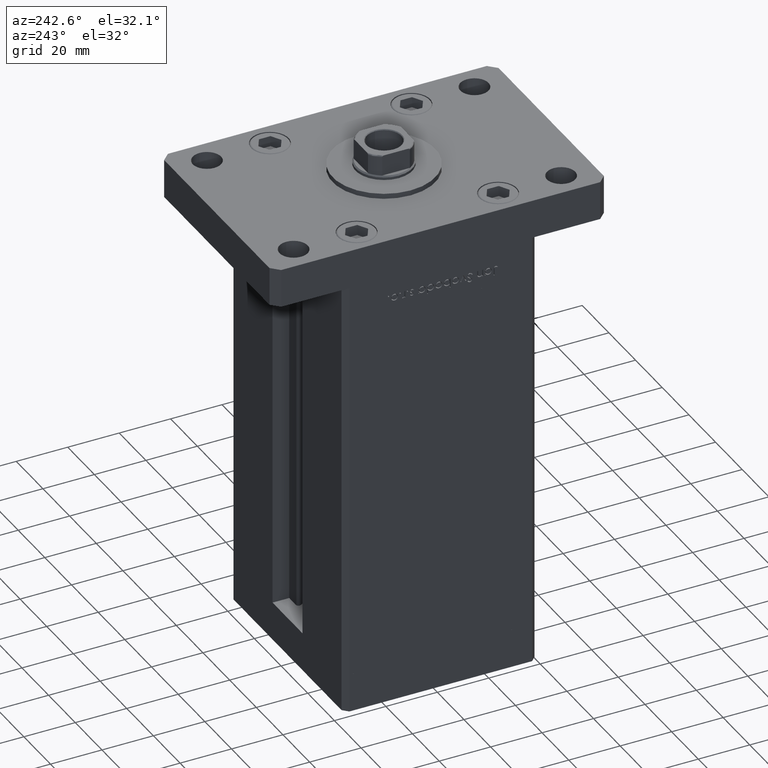
[diagram: clean part render]
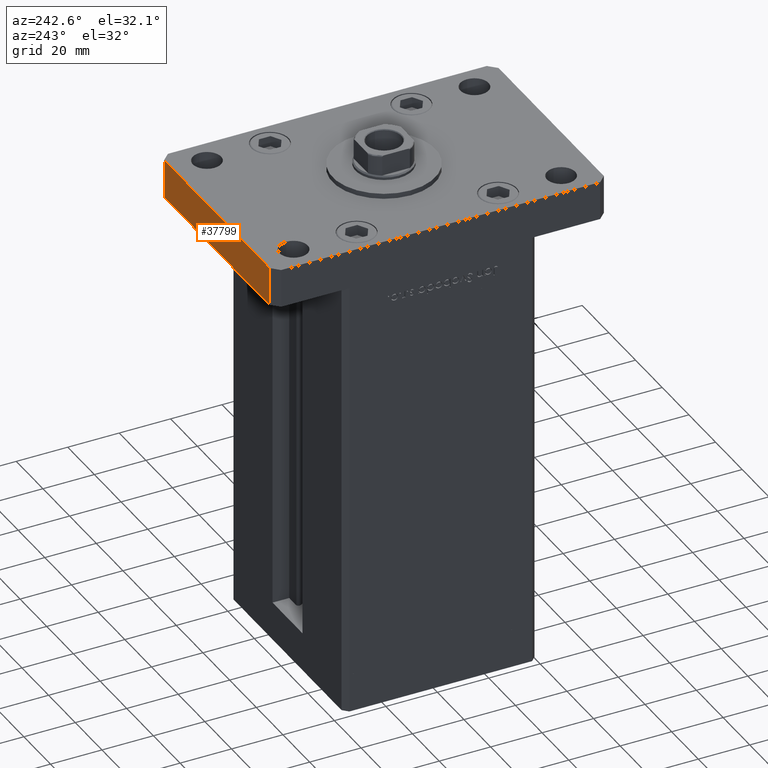
[diagram: same view with one face highlighted and labeled with its STEP entity id]
A machine part, auxiliary view. The second image highlights one B-rep face of the part: STEP entity #37799.
In plain terms, the highlighted planar face has unit normal (0, -1, 0).
Its self-contained STEP definition (entity closure, byte-faithful):
#71 = CARTESIAN_POINT ( 'NONE',  ( 39.50000000000002842, 65.00000000000002842, 15.00000000000000000 ) ) ;
#1464 = ORIENTED_EDGE ( 'NONE', *, *, #5199, .F. ) ;
#5070 = DIRECTION ( 'NONE',  ( -0.000000000000000000, -0.000000000000000000, -1.000000000000000000 ) ) ;
#5199 = EDGE_CURVE ( 'NONE', #7117, #37916, #51415, .T. ) ;
#6117 = EDGE_CURVE ( 'NONE', #34695, #7117, #26219, .T. ) ;
#7117 = VERTEX_POINT ( 'NONE', #8553 ) ;
#7180 = DIRECTION ( 'NONE',  ( 3.513364001978341005E-16, -1.000000000000000000, 0.000000000000000000 ) ) ;
#7453 = CARTESIAN_POINT ( 'NONE',  ( 39.50000000000002842, 65.00000000000002842, 15.00000000000000000 ) ) ;
#8553 = CARTESIAN_POINT ( 'NONE',  ( -39.50000000000003553, 65.00000000000000000, 15.00000000000000000 ) ) ;
#10523 = CARTESIAN_POINT ( 'NONE',  ( 39.50000000000002842, 65.00000000000002842, 0.000000000000000000 ) ) ;
#13001 = ORIENTED_EDGE ( 'NONE', *, *, #6117, .F. ) ;
#15807 = DIRECTION ( 'NONE',  ( -1.000000000000000000, -3.513364001978340512E-16, 0.000000000000000000 ) ) ;
#20008 = AXIS2_PLACEMENT_3D ( 'NONE', #7453, #7180, #40521 ) ;
#20589 = ORIENTED_EDGE ( 'NONE', *, *, #52220, .T. ) ;
#24158 = LINE ( 'NONE', #32801, #31567 ) ;
#26219 = LINE ( 'NONE', #26763, #28793 ) ;
#26763 = CARTESIAN_POINT ( 'NONE',  ( 39.50000000000002842, 65.00000000000002842, 15.00000000000000000 ) ) ;
#28590 = CARTESIAN_POINT ( 'NONE',  ( -39.50000000000003553, 65.00000000000000000, 0.000000000000000000 ) ) ;
#28793 = VECTOR ( 'NONE', #47087, 1000.000000000000000 ) ;
#31129 = EDGE_LOOP ( 'NONE', ( #20589, #1464, #13001, #48583 ) ) ;
#31567 = VECTOR ( 'NONE', #40934, 1000.000000000000000 ) ;
#32801 = CARTESIAN_POINT ( 'NONE',  ( 39.50000000000002842, 65.00000000000002842, 15.00000000000000000 ) ) ;
#32867 = LINE ( 'NONE', #52964, #50657 ) ;
#34695 = VERTEX_POINT ( 'NONE', #71 ) ;
#35382 = PLANE ( 'NONE',  #20008 ) ;
#37799 = ADVANCED_FACE ( 'NONE', ( #43804 ), #35382, .F. ) ;
#37916 = VERTEX_POINT ( 'NONE', #28590 ) ;
#40521 = DIRECTION ( 'NONE',  ( 1.000000000000000000, 3.513364001978341005E-16, 0.000000000000000000 ) ) ;
#40934 = DIRECTION ( 'NONE',  ( -0.000000000000000000, -0.000000000000000000, -1.000000000000000000 ) ) ;
#43513 = VECTOR ( 'NONE', #5070, 1000.000000000000000 ) ;
#43804 = FACE_OUTER_BOUND ( 'NONE', #31129, .T. ) ;
#45401 = VERTEX_POINT ( 'NONE', #10523 ) ;
#47087 = DIRECTION ( 'NONE',  ( -1.000000000000000000, -3.513364001978340512E-16, 0.000000000000000000 ) ) ;
#47346 = CARTESIAN_POINT ( 'NONE',  ( -39.50000000000003553, 65.00000000000000000, 15.00000000000000000 ) ) ;
#48583 = ORIENTED_EDGE ( 'NONE', *, *, #52573, .T. ) ;
#50657 = VECTOR ( 'NONE', #15807, 1000.000000000000000 ) ;
#51415 = LINE ( 'NONE', #47346, #43513 ) ;
#52220 = EDGE_CURVE ( 'NONE', #45401, #37916, #32867, .T. ) ;
#52573 = EDGE_CURVE ( 'NONE', #34695, #45401, #24158, .T. ) ;
#52964 = CARTESIAN_POINT ( 'NONE',  ( 39.50000000000002842, 65.00000000000002842, 0.000000000000000000 ) ) ;